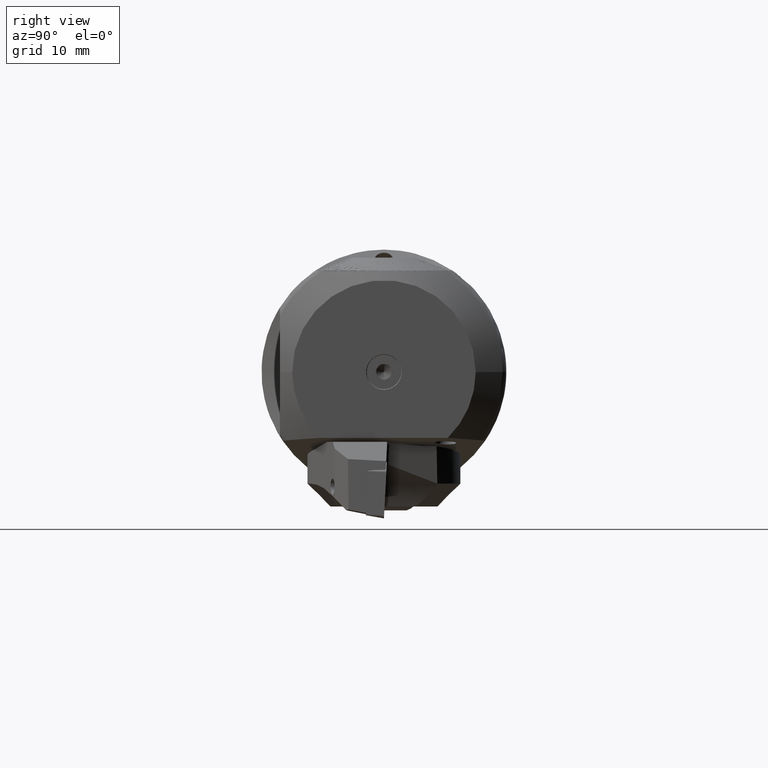
[diagram: clean part render]
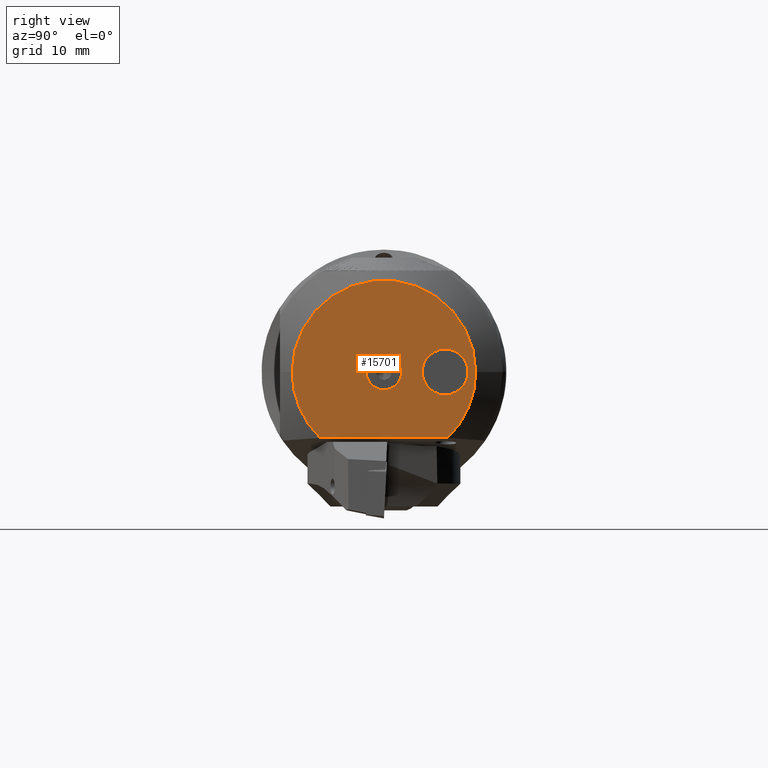
[diagram: same view with one face highlighted and labeled with its STEP entity id]
A machine part, right view. The second image highlights one B-rep face of the part: STEP entity #15701.
In plain terms, the highlighted planar face has unit normal (1, 0, 0).
Its self-contained STEP definition (entity closure, byte-faithful):
#395 = AXIS2_PLACEMENT_3D ( 'NONE', #18810, #18788, #18738 ) ;
#973 = DIRECTION ( 'NONE',  ( 0.0000000000000000000, 0.0000000000000000000, -1.000000000000000000 ) ) ;
#1172 = CARTESIAN_POINT ( 'NONE',  ( 61.00000000000000000, 8.000000000000003600, 0.0000000000000000000 ) ) ;
#1285 = EDGE_CURVE ( 'NONE', #20513, #4866, #27236, .T. ) ;
#1547 = VERTEX_POINT ( 'NONE', #27277 ) ;
#1773 = CIRCLE ( 'NONE', #395, 2.331495457622385600 ) ;
#1832 = VERTEX_POINT ( 'NONE', #14632 ) ;
#2267 = ORIENTED_EDGE ( 'NONE', *, *, #19654, .F. ) ;
#3331 = VERTEX_POINT ( 'NONE', #26034 ) ;
#3622 = CIRCLE ( 'NONE', #13215, 2.999999999999995600 ) ;
#3798 = DIRECTION ( 'NONE',  ( 0.0000000000000000000, 0.0000000000000000000, -1.000000000000000000 ) ) ;
#4182 = CARTESIAN_POINT ( 'NONE',  ( 61.00000000000000000, -12.00000000000000400, 0.0000000000000000000 ) ) ;
#4772 = AXIS2_PLACEMENT_3D ( 'NONE', #23380, #23277, #23167 ) ;
#4866 = VERTEX_POINT ( 'NONE', #27146 ) ;
#4967 = VERTEX_POINT ( 'NONE', #10980 ) ;
#5500 = DIRECTION ( 'NONE',  ( -6.701708707102589200E-017, 1.000000000000000000, 0.0000000000000000000 ) ) ;
#6391 = EDGE_LOOP ( 'NONE', ( #16321, #31827 ) ) ;
#6964 = VECTOR ( 'NONE', #15077, 1000.000000000000000 ) ;
#7451 = ORIENTED_EDGE ( 'NONE', *, *, #31168, .T. ) ;
#8242 = EDGE_CURVE ( 'NONE', #4967, #1832, #1773, .T. ) ;
#8919 = CIRCLE ( 'NONE', #10685, 12.00000000000000400 ) ;
#9502 = CARTESIAN_POINT ( 'NONE',  ( 61.00000000000000000, -8.673617379884035500E-016, 0.0000000000000000000 ) ) ;
#9587 = EDGE_CURVE ( 'NONE', #23855, #14825, #17442, .T. ) ;
#9966 = EDGE_CURVE ( 'NONE', #1832, #4967, #29544, .T. ) ;
#10685 = AXIS2_PLACEMENT_3D ( 'NONE', #12388, #30044, #14972 ) ;
#10980 = CARTESIAN_POINT ( 'NONE',  ( 61.00000000000000000, -5.818358930480187700E-016, 2.331495457622385600 ) ) ;
#11569 = FACE_OUTER_BOUND ( 'NONE', #32820, .T. ) ;
#11912 = ORIENTED_EDGE ( 'NONE', *, *, #1285, .T. ) ;
#12045 = DIRECTION ( 'NONE',  ( 0.0000000000000000000, 0.0000000000000000000, 1.000000000000000000 ) ) ;
#12388 = CARTESIAN_POINT ( 'NONE',  ( 61.00000000000000000, 2.091267772352082000E-015, 0.0000000000000000000 ) ) ;
#13111 = CARTESIAN_POINT ( 'NONE',  ( 61.00000000000000000, 2.694773975691280800E-032, 0.0000000000000000000 ) ) ;
#13215 = AXIS2_PLACEMENT_3D ( 'NONE', #1172, #19251, #3798 ) ;
#13422 = ORIENTED_EDGE ( 'NONE', *, *, #28613, .T. ) ;
#13735 = DIRECTION ( 'NONE',  ( 1.000000000000000000, 6.701708707102589200E-017, -0.0000000000000000000 ) ) ;
#14632 = CARTESIAN_POINT ( 'NONE',  ( 61.00000000000000000, -8.673617379884035500E-016, -2.331495457622385600 ) ) ;
#14825 = VERTEX_POINT ( 'NONE', #4182 ) ;
#14972 = DIRECTION ( 'NONE',  ( 0.0000000000000000000, 1.000000000000000000, 0.0000000000000000000 ) ) ;
#15077 = DIRECTION ( 'NONE',  ( -6.701708707102589200E-017, 1.000000000000000000, -1.061446382792467100E-017 ) ) ;
#15701 = ADVANCED_FACE ( 'NONE', ( #30943, #11569, #17596 ), #20770, .T. ) ;
#16321 = ORIENTED_EDGE ( 'NONE', *, *, #9966, .T. ) ;
#16442 = DIRECTION ( 'NONE',  ( 1.000000000000000000, -0.0000000000000000000, -0.0000000000000000000 ) ) ;
#17297 = EDGE_CURVE ( 'NONE', #1547, #3331, #3622, .T. ) ;
#17442 = CIRCLE ( 'NONE', #4772, 12.00000000000000400 ) ;
#17596 = FACE_BOUND ( 'NONE', #24499, .T. ) ;
#17710 = CARTESIAN_POINT ( 'NONE',  ( 61.00000000000000000, -9.146060744162707900E-017, -8.616601735549876300 ) ) ;
#17899 = ORIENTED_EDGE ( 'NONE', *, *, #17297, .F. ) ;
#18009 = ORIENTED_EDGE ( 'NONE', *, *, #9587, .T. ) ;
#18151 = AXIS2_PLACEMENT_3D ( 'NONE', #13111, #20871, #5500 ) ;
#18738 = DIRECTION ( 'NONE',  ( 0.0000000000000000000, 0.0000000000000000000, 1.000000000000000000 ) ) ;
#18788 = DIRECTION ( 'NONE',  ( -1.000000000000000000, -0.0000000000000000000, -0.0000000000000000000 ) ) ;
#18810 = CARTESIAN_POINT ( 'NONE',  ( 61.00000000000000000, -8.673617379884035500E-016, 0.0000000000000000000 ) ) ;
#19251 = DIRECTION ( 'NONE',  ( 1.000000000000000000, -0.0000000000000000000, -0.0000000000000000000 ) ) ;
#19653 = AXIS2_PLACEMENT_3D ( 'NONE', #9502, #27222, #12045 ) ;
#19654 = EDGE_CURVE ( 'NONE', #3331, #1547, #32486, .T. ) ;
#20513 = VERTEX_POINT ( 'NONE', #32488 ) ;
#20770 = PLANE ( 'NONE',  #18151 ) ;
#20871 = DIRECTION ( 'NONE',  ( 1.000000000000000000, 6.701708707102589200E-017, -0.0000000000000000000 ) ) ;
#21599 = AXIS2_PLACEMENT_3D ( 'NONE', #28870, #13735, #31413 ) ;
#23167 = DIRECTION ( 'NONE',  ( 0.0000000000000000000, 1.000000000000000000, 0.0000000000000000000 ) ) ;
#23277 = DIRECTION ( 'NONE',  ( 1.000000000000000000, 6.701708707102589200E-017, -0.0000000000000000000 ) ) ;
#23380 = CARTESIAN_POINT ( 'NONE',  ( 61.00000000000000000, 2.091267772352082000E-015, 0.0000000000000000000 ) ) ;
#23855 = VERTEX_POINT ( 'NONE', #28507 ) ;
#24175 = CIRCLE ( 'NONE', #21599, 12.00000000000000400 ) ;
#24499 = EDGE_LOOP ( 'NONE', ( #2267, #17899 ) ) ;
#25779 = AXIS2_PLACEMENT_3D ( 'NONE', #31487, #16442, #973 ) ;
#26034 = CARTESIAN_POINT ( 'NONE',  ( 61.00000000000000000, 8.000000000000003600, -2.999999999999995600 ) ) ;
#27146 = CARTESIAN_POINT ( 'NONE',  ( 61.00000000000000000, 8.351896463134524500, -8.616601735549876300 ) ) ;
#27222 = DIRECTION ( 'NONE',  ( -1.000000000000000000, -0.0000000000000000000, -0.0000000000000000000 ) ) ;
#27236 = LINE ( 'NONE', #17710, #6964 ) ;
#27277 = CARTESIAN_POINT ( 'NONE',  ( 61.00000000000000000, 8.000000000000003600, 2.999999999999995600 ) ) ;
#28507 = CARTESIAN_POINT ( 'NONE',  ( 61.00000000000000000, 12.00000000000000500, 1.683889348827611600E-015 ) ) ;
#28613 = EDGE_CURVE ( 'NONE', #4866, #23855, #24175, .T. ) ;
#28870 = CARTESIAN_POINT ( 'NONE',  ( 61.00000000000000000, 2.091267772352082000E-015, 0.0000000000000000000 ) ) ;
#29544 = CIRCLE ( 'NONE', #19653, 2.331495457622385600 ) ;
#30044 = DIRECTION ( 'NONE',  ( 1.000000000000000000, 6.701708707102589200E-017, -0.0000000000000000000 ) ) ;
#30943 = FACE_BOUND ( 'NONE', #6391, .T. ) ;
#31168 = EDGE_CURVE ( 'NONE', #14825, #20513, #8919, .T. ) ;
#31413 = DIRECTION ( 'NONE',  ( 0.0000000000000000000, 1.000000000000000000, 0.0000000000000000000 ) ) ;
#31487 = CARTESIAN_POINT ( 'NONE',  ( 61.00000000000000000, 8.000000000000003600, 0.0000000000000000000 ) ) ;
#31827 = ORIENTED_EDGE ( 'NONE', *, *, #8242, .T. ) ;
#32486 = CIRCLE ( 'NONE', #25779, 2.999999999999995600 ) ;
#32488 = CARTESIAN_POINT ( 'NONE',  ( 61.00000000000000000, -8.351896463134520900, -8.616601735549874500 ) ) ;
#32820 = EDGE_LOOP ( 'NONE', ( #13422, #18009, #7451, #11912 ) ) ;